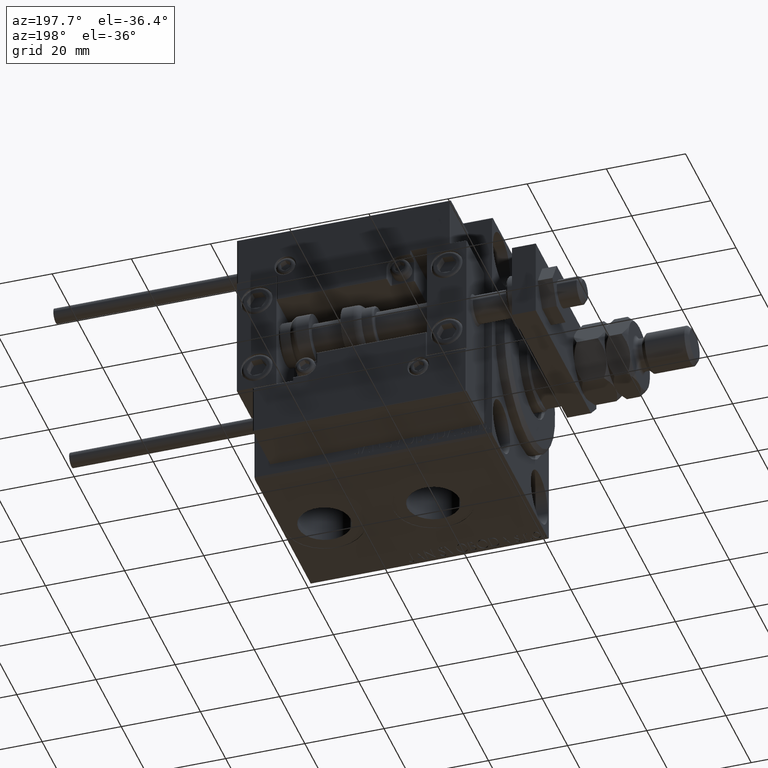
[diagram: clean part render]
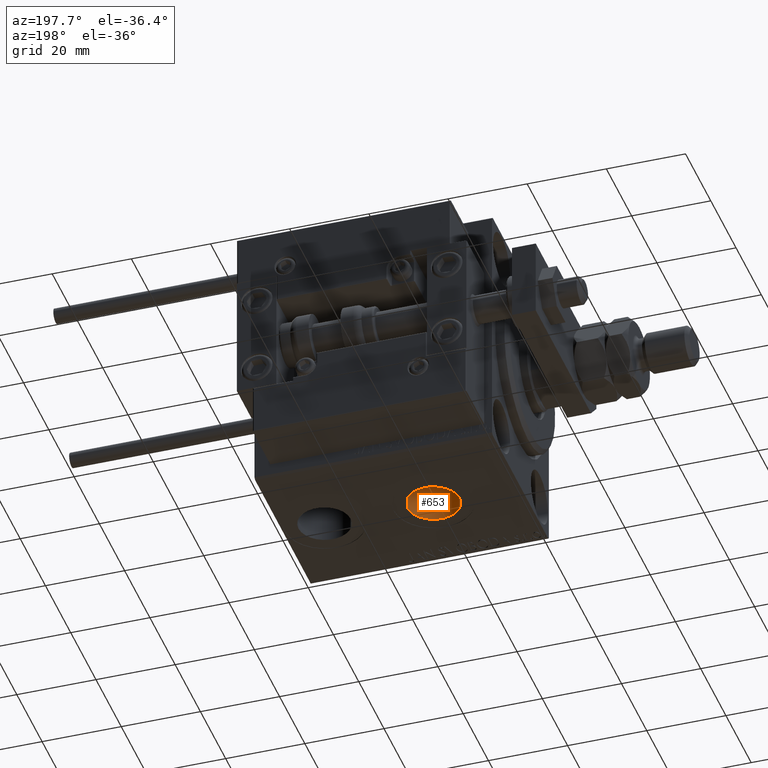
[diagram: same view with one face highlighted and labeled with its STEP entity id]
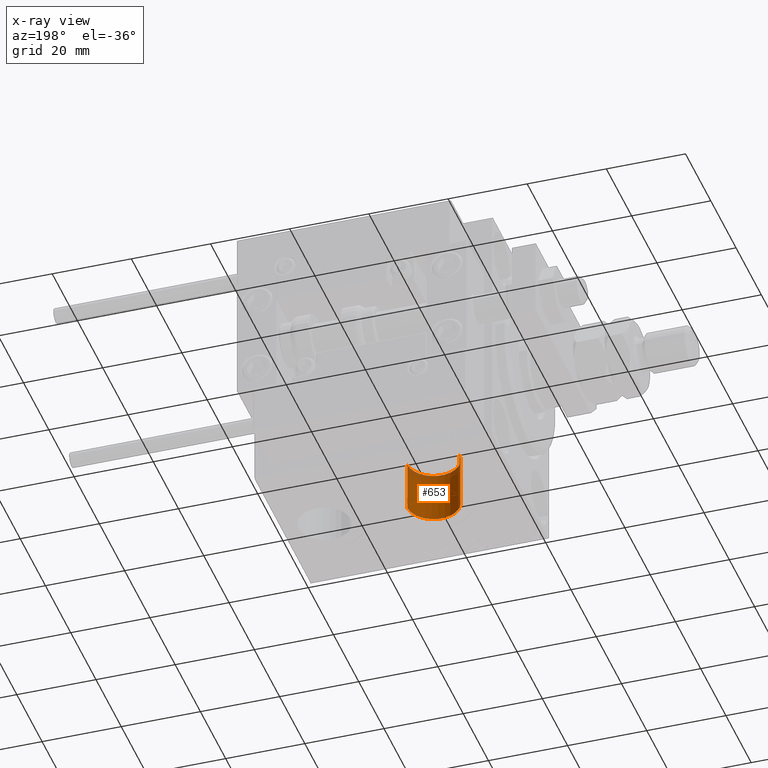
[diagram: x-ray of the same camera — body ghosted, the highlighted face saturated]
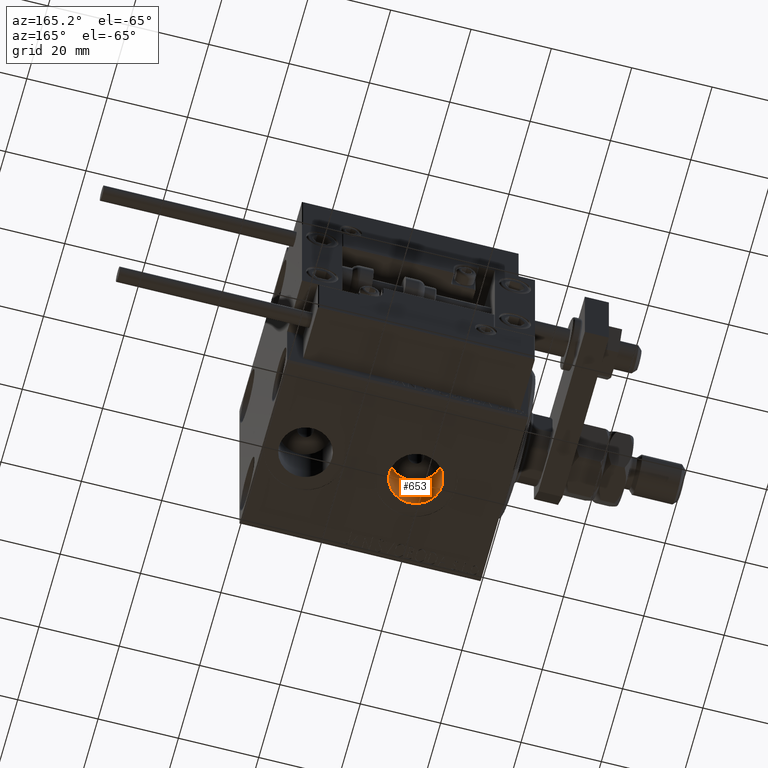
[diagram: same view with one face highlighted and labeled with its STEP entity id]
A machine part, auxiliary view. The second image highlights one B-rep face of the part: STEP entity #653.
The next image is the same camera in x-ray: the body ghosted, the highlighted face saturated — about 12% of this face is hidden behind the body in this view.
A second angle (auxiliary view) of the same face is appended — the face is thin or edge-on in the first view.
In plain terms, the highlighted cylindrical surface (edge-blend (fillet) strip) has radius 6.58 mm, axis along (-0, -0, -1).
Its self-contained STEP definition (entity closure, byte-faithful):
#364 = AXIS2_PLACEMENT_3D ( 'NONE', #3478, #39692, #19730 ) ;
#653 = ADVANCED_FACE ( 'NONE', ( #19630 ), #32218, .F. ) ;
#2357 = EDGE_CURVE ( 'NONE', #22657, #32217, #47356, .T. ) ;
#3478 = CARTESIAN_POINT ( 'NONE',  ( 22.00000000000000000, -3.594347949397319039E-15, -19.50000000000000355 ) ) ;
#5154 = EDGE_CURVE ( 'NONE', #32217, #40523, #42148, .T. ) ;
#7837 = DIRECTION ( 'NONE',  ( -0.000000000000000000, -0.000000000000000000, -1.000000000000000000 ) ) ;
#9311 = DIRECTION ( 'NONE',  ( -0.000000000000000000, -0.000000000000000000, -1.000000000000000000 ) ) ;
#9359 = ORIENTED_EDGE ( 'NONE', *, *, #5154, .F. ) ;
#11359 = VECTOR ( 'NONE', #49768, 1000.000000000000000 ) ;
#12256 = AXIS2_PLACEMENT_3D ( 'NONE', #18931, #43084, #34934 ) ;
#18931 = CARTESIAN_POINT ( 'NONE',  ( 22.00000000000000000, -3.594347949397319039E-15, -32.40000000000000568 ) ) ;
#19630 = FACE_OUTER_BOUND ( 'NONE', #19689, .T. ) ;
#19689 = EDGE_LOOP ( 'NONE', ( #39259, #48145, #46451, #9359 ) ) ;
#19730 = DIRECTION ( 'NONE',  ( -1.000000000000000000, 0.000000000000000000, 0.000000000000000000 ) ) ;
#21230 = CARTESIAN_POINT ( 'NONE',  ( 15.41999999999999638, -3.594347949397319039E-15, -32.40000000000000568 ) ) ;
#22045 = AXIS2_PLACEMENT_3D ( 'NONE', #28279, #7837, #48269 ) ;
#22422 = VECTOR ( 'NONE', #9311, 1000.000000000000000 ) ;
#22657 = VERTEX_POINT ( 'NONE', #32430 ) ;
#24540 = CARTESIAN_POINT ( 'NONE',  ( 28.58000000000000185, -2.788530355558360786E-15, -19.50000000000000355 ) ) ;
#25951 = VERTEX_POINT ( 'NONE', #45528 ) ;
#28279 = CARTESIAN_POINT ( 'NONE',  ( 22.00000000000000000, -3.594347949397319039E-15, -19.50000000000000355 ) ) ;
#32217 = VERTEX_POINT ( 'NONE', #33712 ) ;
#32218 = CYLINDRICAL_SURFACE ( 'NONE', #22045, 6.580000000000002736 ) ;
#32430 = CARTESIAN_POINT ( 'NONE',  ( 28.58000000000000185, -2.788530355558360786E-15, -19.50000000000000355 ) ) ;
#33712 = CARTESIAN_POINT ( 'NONE',  ( 15.41999999999999638, -3.594347949397319039E-15, -19.50000000000000355 ) ) ;
#34532 = EDGE_CURVE ( 'NONE', #25951, #40523, #34878, .T. ) ;
#34878 = CIRCLE ( 'NONE', #12256, 6.580000000000002736 ) ;
#34934 = DIRECTION ( 'NONE',  ( -1.000000000000000000, 0.000000000000000000, 0.000000000000000000 ) ) ;
#37667 = CARTESIAN_POINT ( 'NONE',  ( 15.41999999999999638, -3.594347949397319039E-15, -19.50000000000000355 ) ) ;
#39259 = ORIENTED_EDGE ( 'NONE', *, *, #2357, .F. ) ;
#39692 = DIRECTION ( 'NONE',  ( 0.000000000000000000, 0.000000000000000000, -1.000000000000000000 ) ) ;
#40348 = EDGE_CURVE ( 'NONE', #22657, #25951, #48716, .T. ) ;
#40523 = VERTEX_POINT ( 'NONE', #21230 ) ;
#42148 = LINE ( 'NONE', #37667, #11359 ) ;
#43084 = DIRECTION ( 'NONE',  ( 0.000000000000000000, 0.000000000000000000, -1.000000000000000000 ) ) ;
#45528 = CARTESIAN_POINT ( 'NONE',  ( 28.58000000000000185, -2.788530355558360786E-15, -32.40000000000000568 ) ) ;
#46451 = ORIENTED_EDGE ( 'NONE', *, *, #34532, .T. ) ;
#47356 = CIRCLE ( 'NONE', #364, 6.580000000000002736 ) ;
#48145 = ORIENTED_EDGE ( 'NONE', *, *, #40348, .T. ) ;
#48269 = DIRECTION ( 'NONE',  ( -1.000000000000000000, 0.000000000000000000, 0.000000000000000000 ) ) ;
#48716 = LINE ( 'NONE', #24540, #22422 ) ;
#49768 = DIRECTION ( 'NONE',  ( -0.000000000000000000, -0.000000000000000000, -1.000000000000000000 ) ) ;